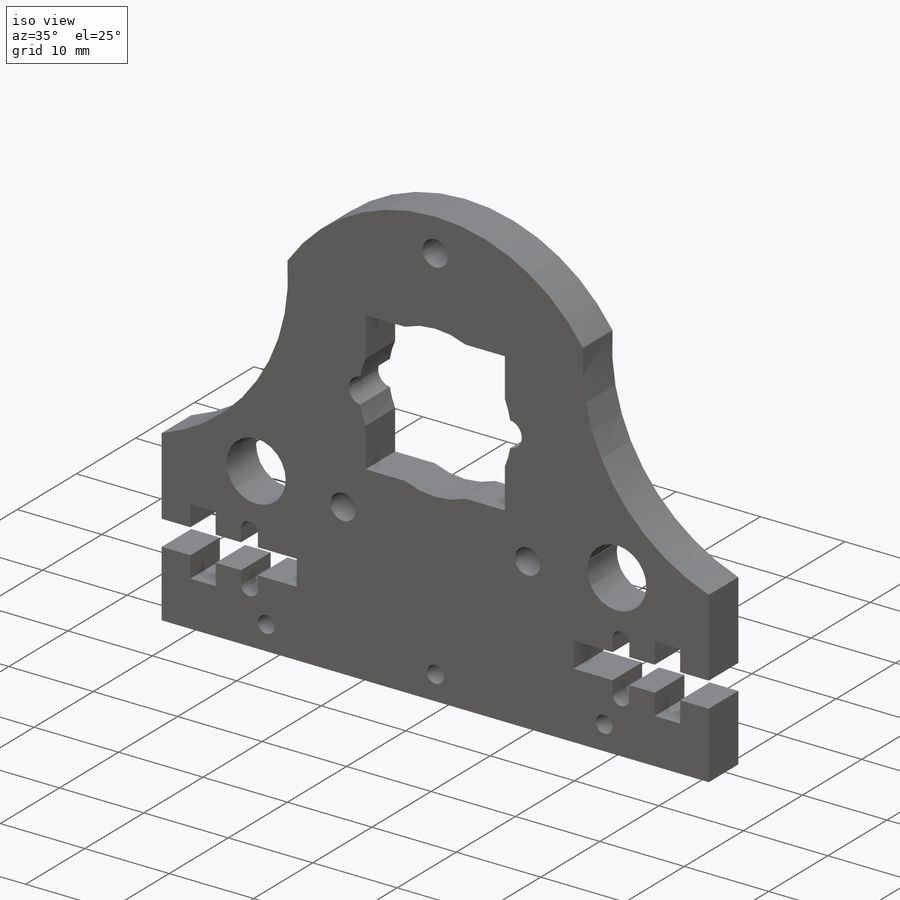
[diagram: iso view]
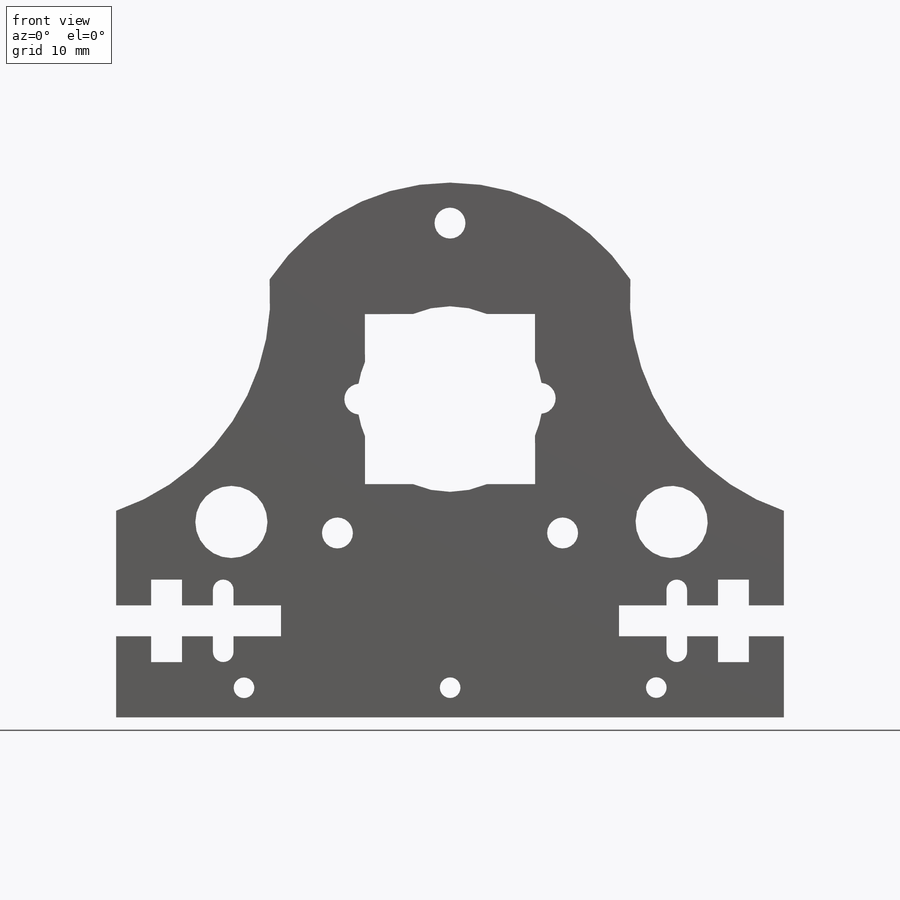
[diagram: front view]
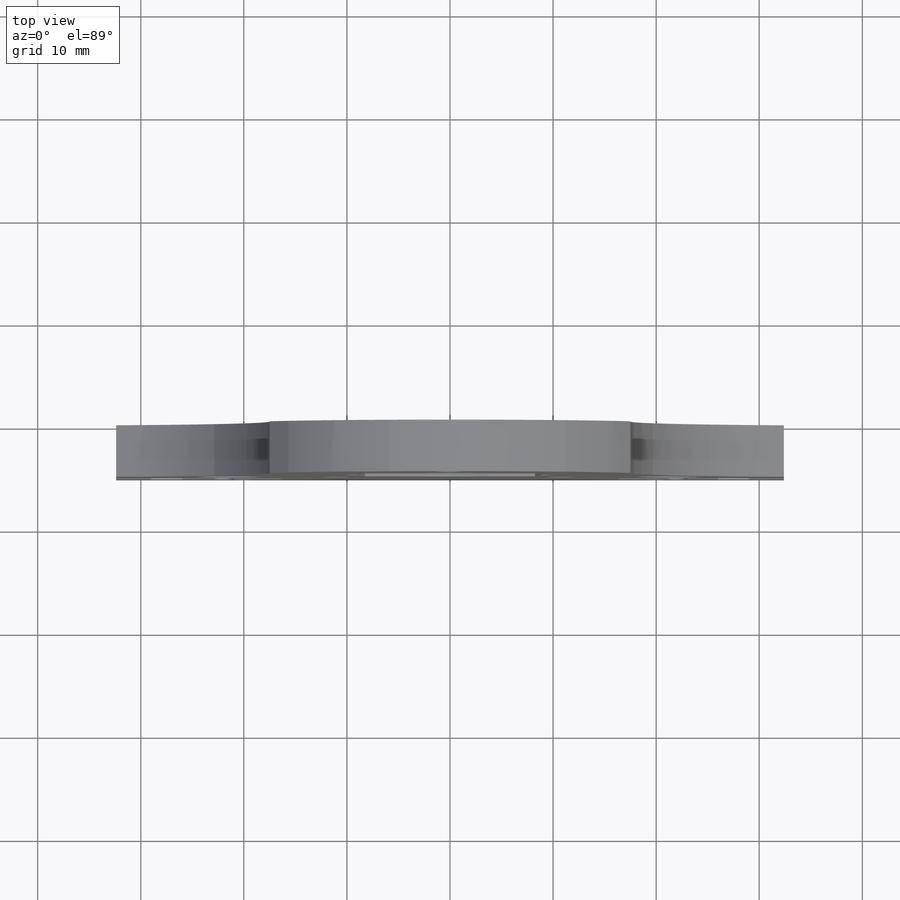
[diagram: top view]
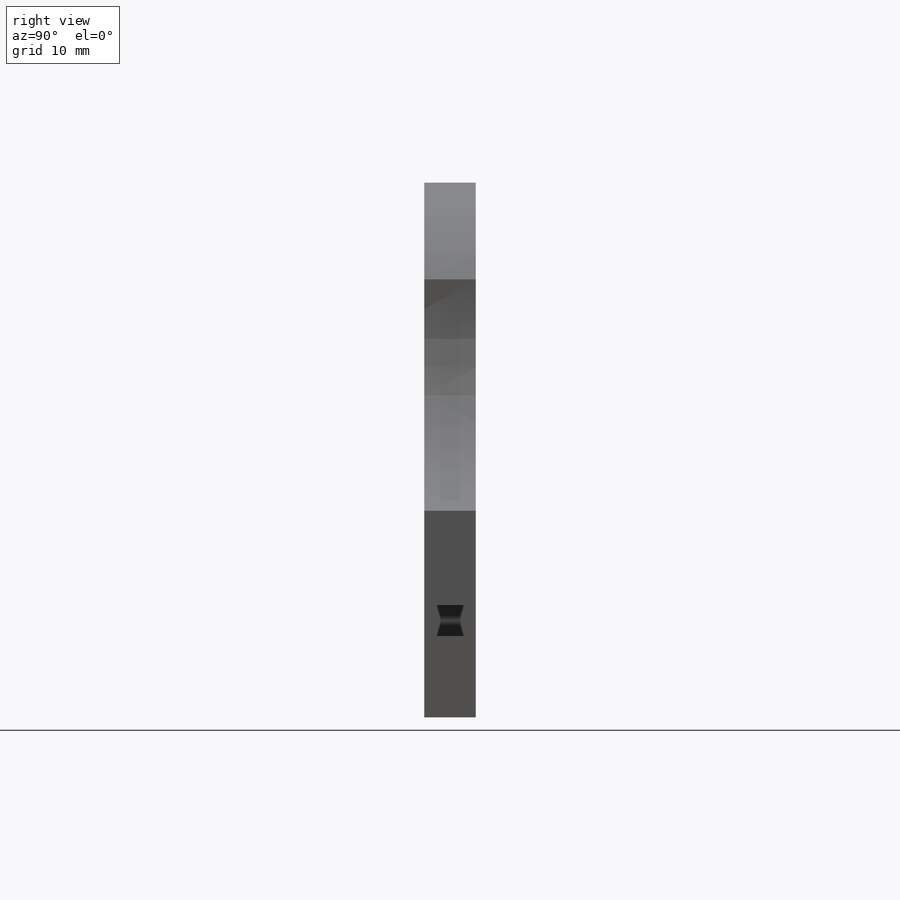
[diagram: right view]
SOLIDWORKS PART (.sldprt)
format: sldprt  version: not decoded by parser v0  size: 696,320 bytes
history: native  units: mm
features: sketch x7, cut_extrude x5, extrude x2, material x1, mirror x1 (+16 scaffold rows collapsed)
feature tree (32):
  scaffold x16  (default folders/planes/origin — collapsed)
  material  "Material <not specified>"
  sketch  "Sketch1"  dims[c1.D1=15.0mm c1.D2=7.0mm c1.D3=34.0mm c2.D2=0.0mm]
  extrude  "Boss-Extrude1"  Depth=5mm
  sketch  "Sketch2"  dims[c1.D1=3.0mm c1.D2=16.0mm c1.D3=2.0mm c1.D4=8.0mm c1.D5=3.0mm c1.D6=2.0mm c2.D5=3.0mm c2.D6=8.0mm]
  cut_extrude  "Cut-Extrude3"  Depth=10mm
  mirror  "Mirror1"
  sketch  "Sketch3"
  cut_extrude  "Cut-Extrude4"  [1 undecoded]
  sketch  "Sketch4"  dims[D1=42.0mm D2=0.0mm D3=0.0mm]
  cut_extrude  "Cut-Extrude5"  Depth=10mm
  extrude  "Boss-Extrude2"  [1 undecoded]
  sketch  "Sketch4<5>"  dims[D1=5.0mm]
  sketch  "Sketch5"  dims[D1=2.0mm]
  cut_extrude  "Cut-Extrude6"  Depth=5mm
  sketch  "Sketch6"  dims[D1=22.0mm]
  cut_extrude  "Cut-Extrude7"  [1 undecoded]
decode coverage: 10 of 15 modeling features carry decoded parameters
note: 3 parameter values undecoded
summary: no parameter record found for 3 features
note: suppression state not decoded; provenance and decode notes live in map.json
